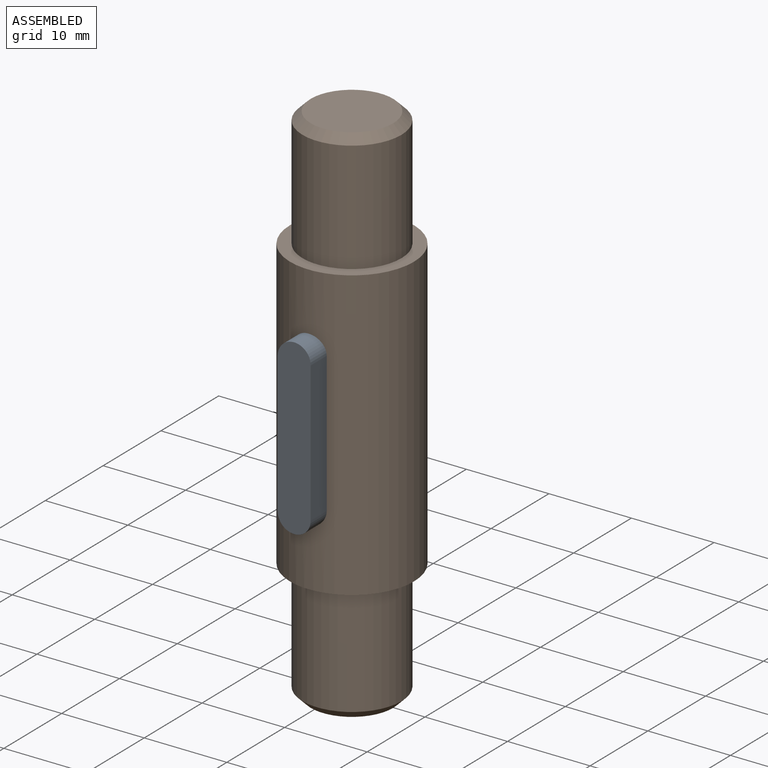
[diagram: assembled view]
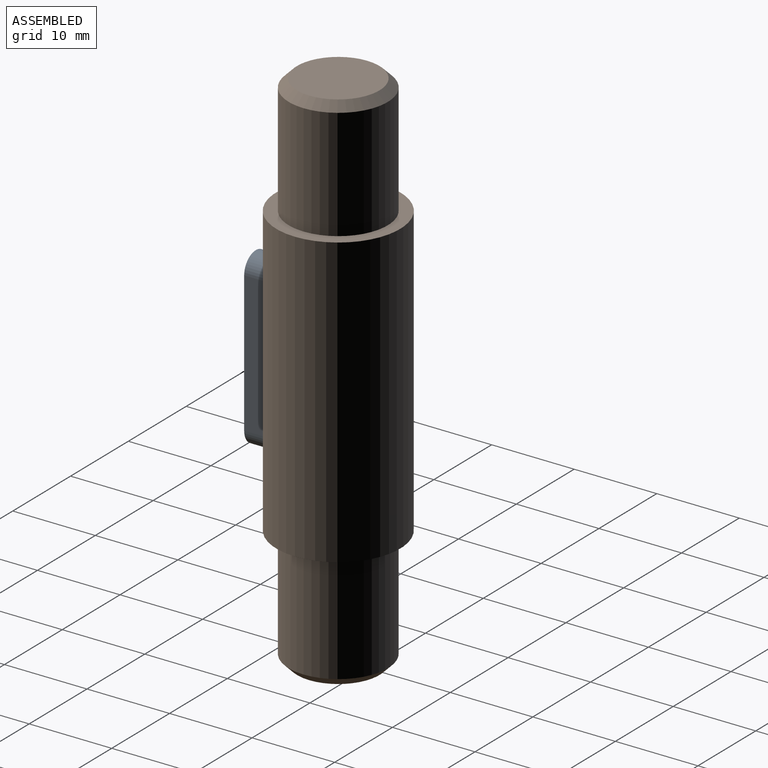
[diagram: assembled view, second angle]
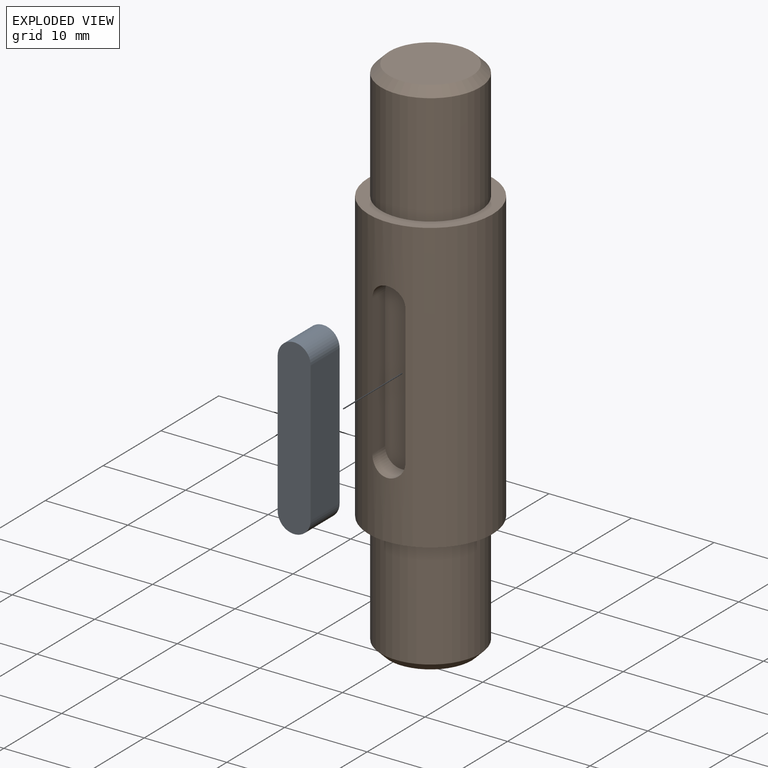
[diagram: exploded view]
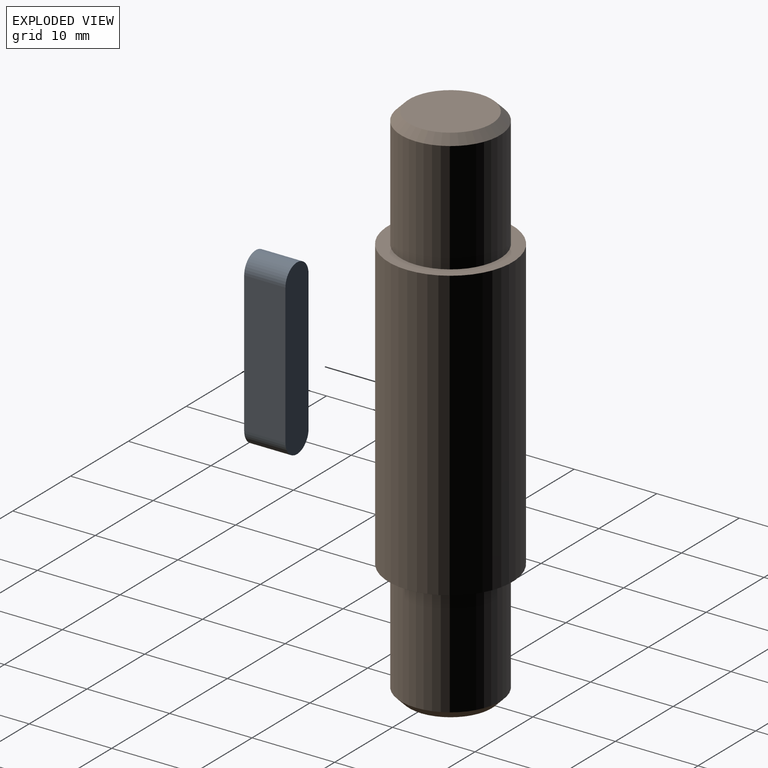
[diagram: exploded view, second angle]
ASSEMBLY  parts=2 mates=2
PART A: 6 faces, bbox 5x21x4 mm
  f0: plane 21x4mm, normal (-1,0,0), area 80.6mm2, adj f1,f3,f4,f5
  f1: plane 17x5mm, normal (0,0,-1), area 85mm2, adj f0,f2,f4,f5
  f2: plane 21x4mm, normal (1,0,0), area 80.6mm2, adj f1,f3,f4,f5
  f3: plane 17x5mm, normal (0,0,1), area 85mm2, adj f0,f2,f4,f5
  f4: cylinder r=2mm len=5mm, axis (-1,0,0), area 31.4mm2, adj f0,f1,f2,f3
  f5: cylinder r=2mm len=5mm, axis (1,0,0), area 31.4mm2, adj f0,f1,f2,f3
PART B: 14 faces, bbox 15x15x64 mm
  f0: cylinder r=7.5mm len=35mm, axis (0,0,1), area 1567.8mm2, adj f3,f4,f9,f11,f12,f13
  f1: plane 10x10mm, normal (0,0,-1), area 78.5mm2, adj f7
  f2: cylinder r=6mm len=13.5mm, axis (0,0,1), area 508.9mm2, adj f3,f7
  f3: plane 15x15mm, normal (0,0,-1), area 63.6mm2, adj f0,f2
  f4: plane 15x15mm, normal (0,0,1), area 63.6mm2, adj f0,f5
  f5: cylinder r=6mm len=13.5mm, axis (0,0,1), area 508.9mm2, adj f4,f8
  f6: plane 10x10mm, normal (0,0,1), area 78.5mm2, adj f8
  f7: cone r=6mm half-angle=45deg, axis (0,0,1), area 48.9mm2, adj f1,f2
  f8: cone r=5mm half-angle=45deg, axis (0,0,-1), area 48.9mm2, adj f5,f6
  f9: plane 17x2.23mm, normal (-1,0,0), area 37.9mm2, adj f0,f10,f12,f13
  f10: plane 21x4mm, normal (0,-1,0), area 80.6mm2, adj f9,f11,f12,f13
  f11: plane 17x2.23mm, normal (1,0,0), area 37.9mm2, adj f0,f10,f12,f13
  f12: cylinder r=2mm len=4mm, axis (0,1,0), area 14.9mm2, adj f0,f9,f10,f11
  f13: cylinder r=2mm len=4mm, axis (0,-1,0), area 14.9mm2, adj f0,f9,f10,f11
PLACE A rot(axis=(0.58,0.58,0.58),120deg) t=(-26.69,-19.34,14.73)mm
PLACE B t=(-27.55,-11.84,4.23)mm fixed
MATE planar A.f2 <-> B.f10  axis (0,1,0) through (-27.55,-16.84,4.23)mm
MATE slider A.f4 <-> B.f12  axis (0,-1,0) through (-27.55,-19.34,12.73)mm
